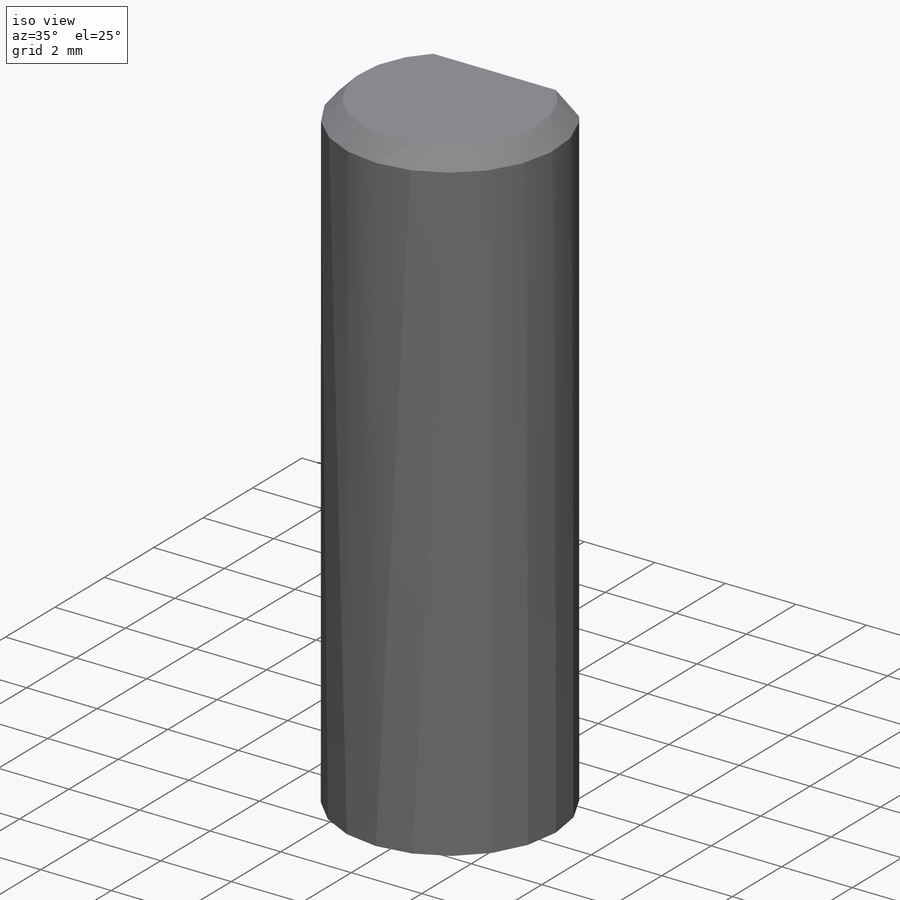
[diagram: iso view]
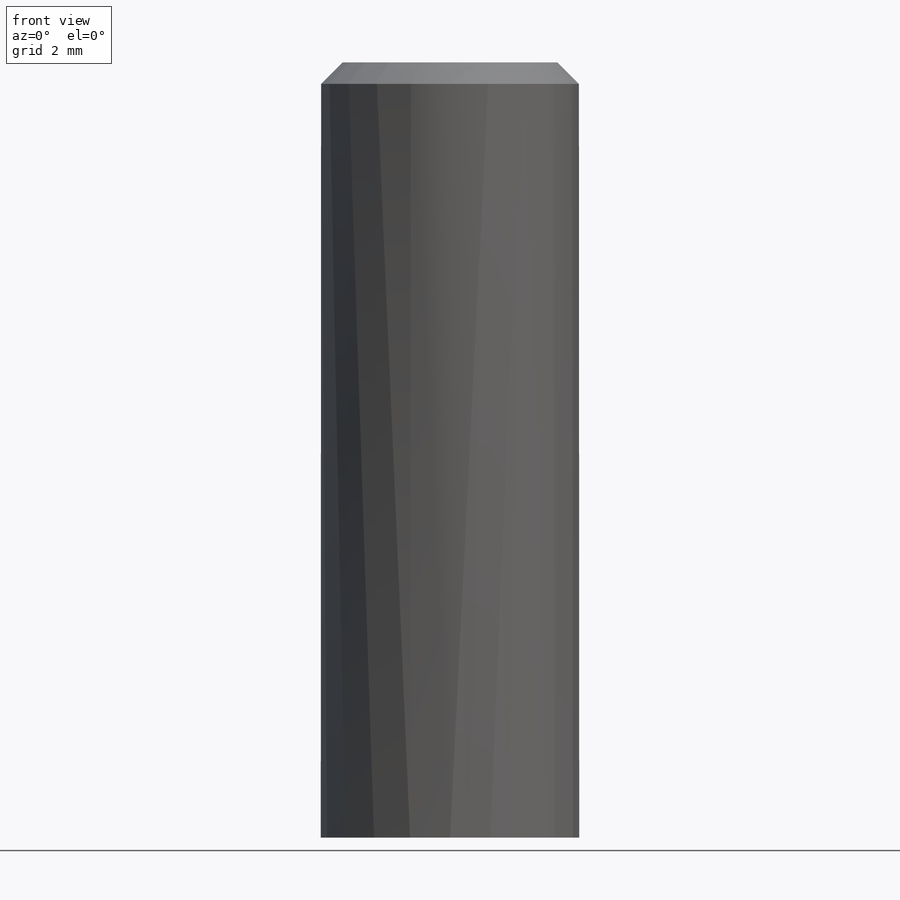
[diagram: front view]
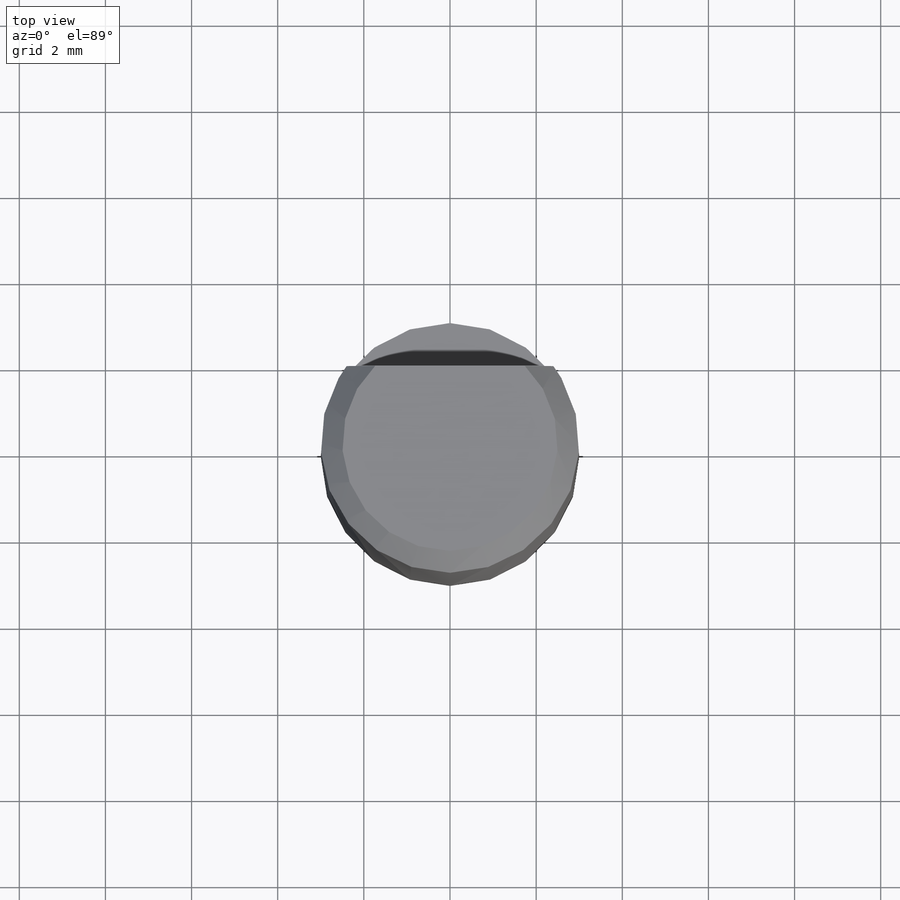
[diagram: top view]
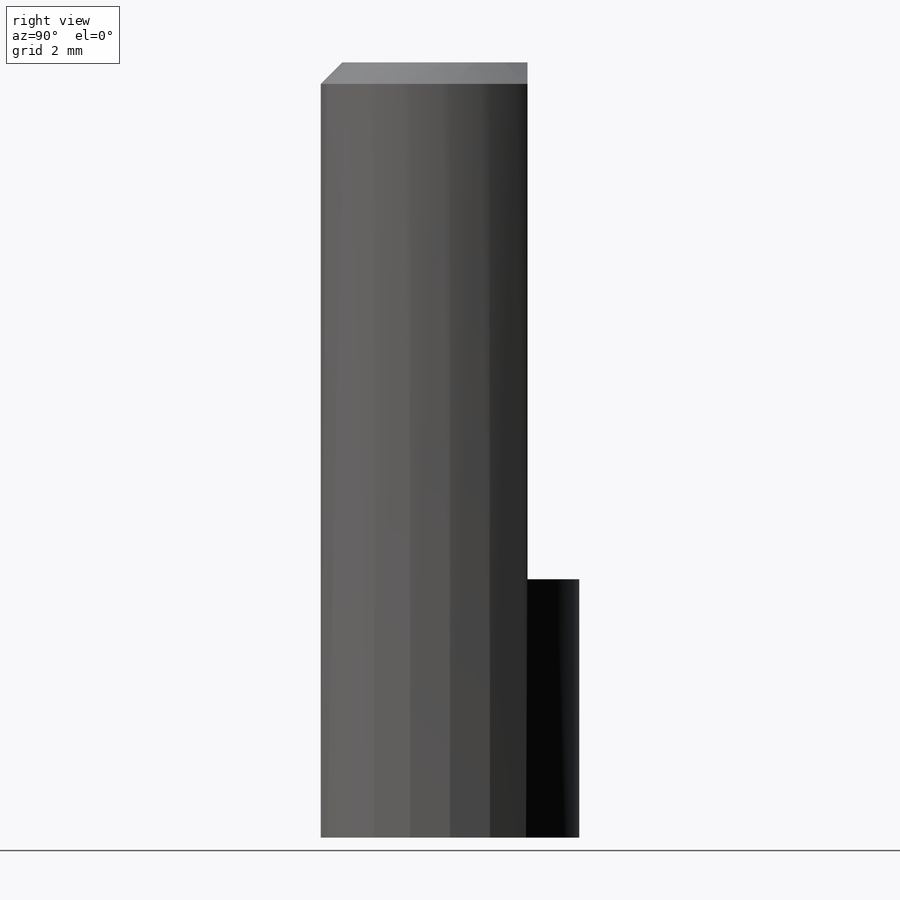
[diagram: right view]
SOLIDWORKS PART (.sldprt)
format: sldprt  version: not decoded by parser v0  size: 181,760 bytes
history: native  units: mm
features: plane x3, sketch x2, material x1, extrude x1, chamfer x1, cut_extrude x1 (+9 scaffold rows collapsed)
feature tree (18):
  scaffold x9  (default folders/planes/origin — collapsed)
  material  "Материал <не указан>"
  plane  "Спереди"
  plane  "Сверху"
  plane  "Справа"
  sketch  "Эскиз1"  dims[D1=6.0mm]
  extrude  "Бобышка-Вытянуть1"  Depth=18mm
  chamfer  "Фаска1"  Distance=0.5mm Angle=45deg
  sketch  "Эскиз2"  dims[c1.D1=6.0mm c1.D2=6.0mm c2.D1=1.8mm]
  cut_extrude  "Вырез-Вытянуть1"  Depth=12mm
decode coverage: 5 of 5 modeling features carry decoded parameters
note: suppression state not decoded; provenance and decode notes live in map.json
